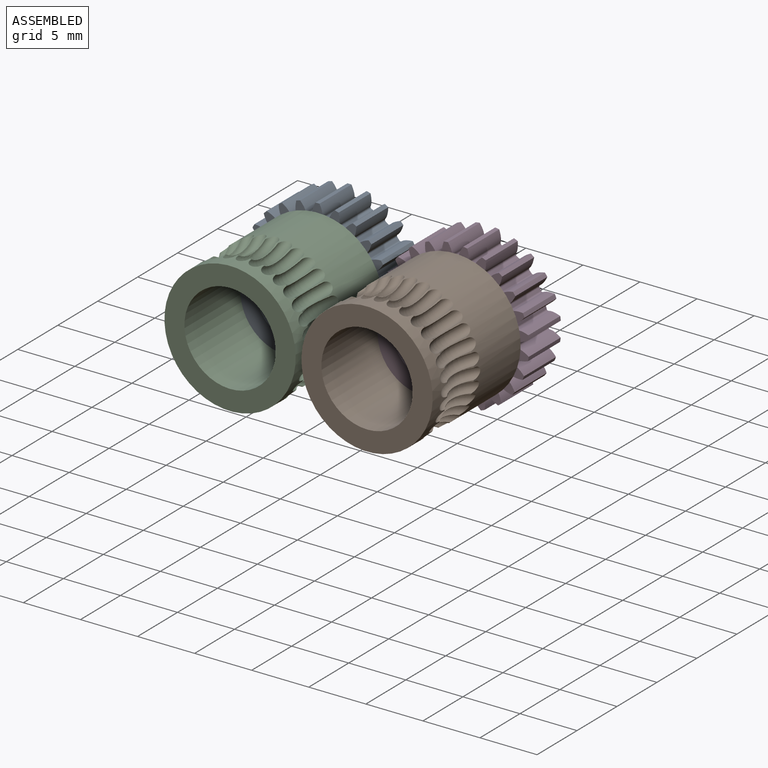
[diagram: assembled view]
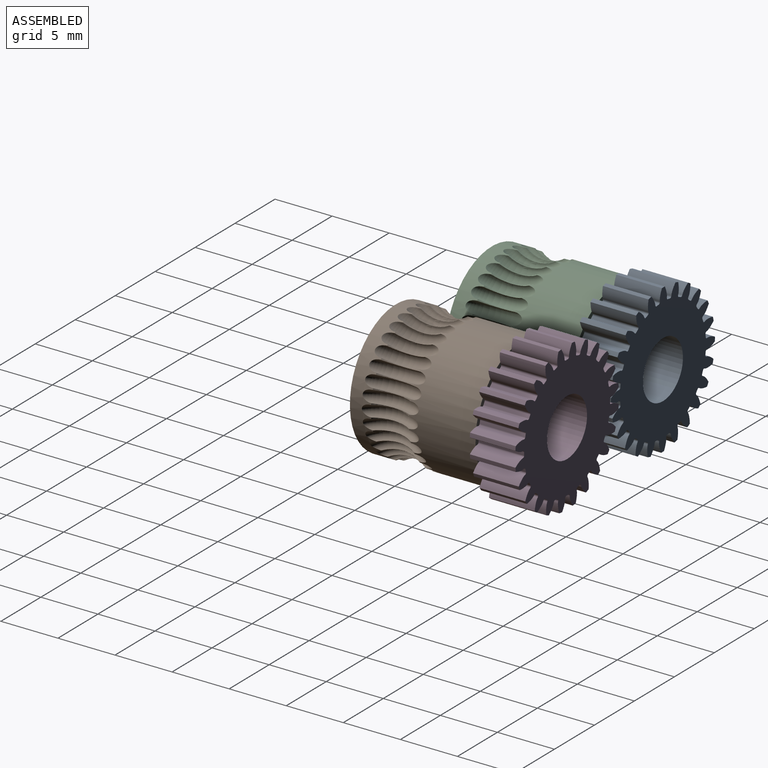
[diagram: assembled view, second angle]
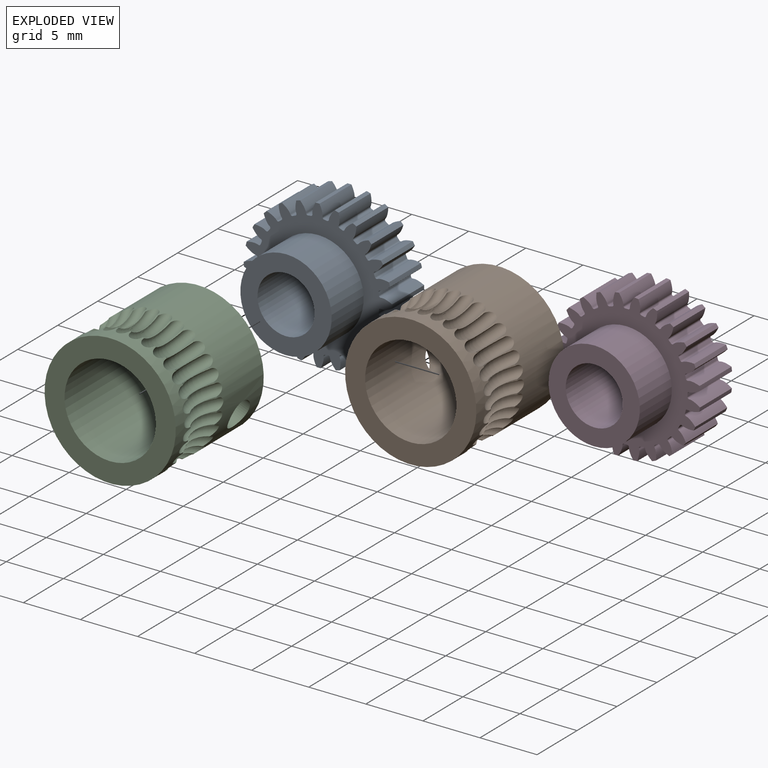
[diagram: exploded view]
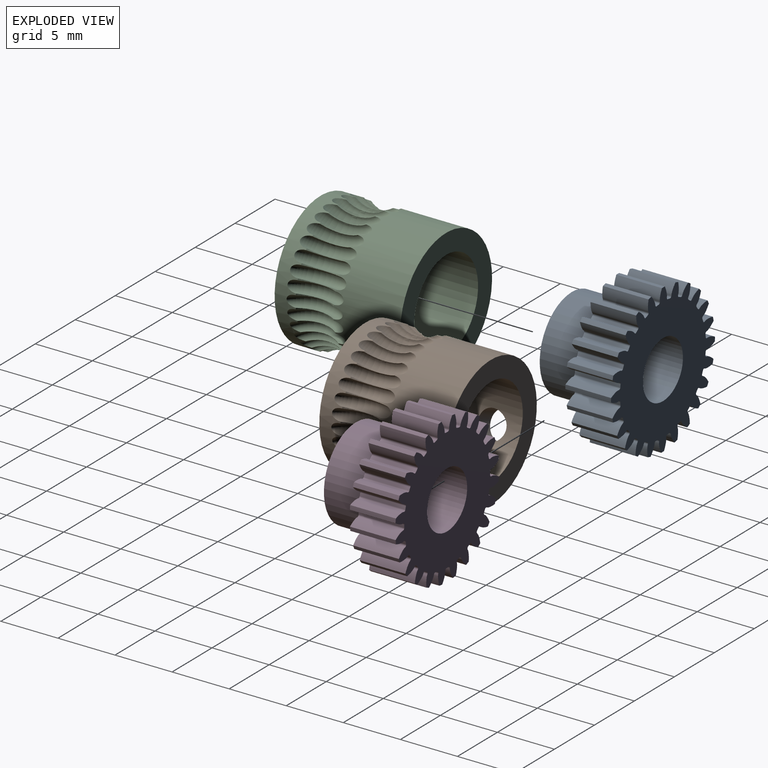
[diagram: exploded view, second angle]
ASSEMBLY  parts=4 mates=2
PART A: 149 faces, bbox 12.9x8x12.9 mm
  f0: cylinder r=6.5mm len=4mm, axis (0,1,0), area 1.4mm2, adj f23,f26,f123,f142
  f1: cylinder r=6.5mm len=4mm, axis (0,1,0), area 1.4mm2, adj f23,f26,f137,f143
  f2: cylinder r=6.5mm len=4mm, axis (0,1,0), area 1.4mm2, adj f23,f26,f128,f132
  f3: cylinder r=6.5mm len=4mm, axis (0,1,0), area 1.4mm2, adj f23,f26,f127,f138
  f4: cylinder r=6.5mm len=4mm, axis (0,1,0), area 1.4mm2, adj f23,f26,f118,f122
  f5: cylinder r=6.5mm len=4mm, axis (0,1,0), area 1.4mm2, adj f23,f26,f108,f117
  f6: cylinder r=6.5mm len=4mm, axis (0,1,0), area 1.4mm2, adj f23,f26,f103,f112
  f7: cylinder r=6.5mm len=4mm, axis (0,1,0), area 1.4mm2, adj f23,f26,f107,f113
  f8: cylinder r=6.5mm len=4mm, axis (0,1,0), area 1.4mm2, adj f23,f26,f98,f102
  f9: cylinder r=6.5mm len=4mm, axis (0,1,0), area 1.4mm2, adj f23,f26,f93,f97
  f10: cylinder r=6.5mm len=4mm, axis (0,1,0), area 1.4mm2, adj f23,f26,f88,f92
  f11: cylinder r=6.5mm len=4mm, axis (0,1,0), area 1.4mm2, adj f23,f26,f73,f87
  f12: cylinder r=6.5mm len=4mm, axis (0,1,0), area 1.4mm2, adj f23,f26,f28,f82
  f13: cylinder r=6.5mm len=4mm, axis (0,1,0), area 1.4mm2, adj f23,f26,f77,f83
  f14: cylinder r=6.5mm len=4mm, axis (0,1,0), area 1.4mm2, adj f23,f26,f68,f72
  f15: cylinder r=6.5mm len=4mm, axis (0,1,0), area 1.4mm2, adj f23,f26,f67,f78
  f16: cylinder r=6.5mm len=4mm, axis (0,1,0), area 1.4mm2, adj f23,f26,f53,f62
  f17: cylinder r=6.5mm len=4mm, axis (0,1,0), area 1.4mm2, adj f23,f26,f48,f57
  f18: cylinder r=6.5mm len=4mm, axis (0,1,0), area 1.4mm2, adj f23,f26,f52,f58
  f19: cylinder r=6.5mm len=4mm, axis (0,1,0), area 1.4mm2, adj f23,f26,f43,f47
  f20: cylinder r=6.5mm len=4mm, axis (0,1,0), area 1.4mm2, adj f23,f26,f38,f42
  f21: cylinder r=6.5mm len=4mm, axis (0,1,0), area 1.4mm2, adj f23,f26,f33,f37
  f22: cylinder r=6.5mm len=4mm, axis (0,1,0), area 1.4mm2, adj f23,f26,f32,f133
  f23: plane 12.93x12.93mm, normal (0,-1,0), area 60.9mm2, adj f0,f1,f2,f3,f4,f5,f6,f7
  f24: cylinder r=2.5mm len=8mm, axis (0,1,0), area 125.7mm2, adj f26,f148
  f25: cylinder r=6.5mm len=4mm, axis (0,1,0), area 1.4mm2, adj f23,f26,f27,f63
  f26: plane 12.93x12.93mm, normal (0,1,0), area 91.5mm2, adj f0,f1,f2,f3,f4,f5,f6,f7
  f27: extruded ~4x0.96mm, area 4.2mm2, adj f23,f25,f26,f31
  f28: extruded ~4x0.96mm, area 4.2mm2, adj f12,f23,f26,f30
  f29: cylinder r=5.38mm len=4mm, axis (0,1,0), area 1.1mm2, adj f23,f26,f30,f31
  f30: cylinder r=0.14mm len=4mm, axis (0,1,0), area 0.9mm2, adj f23,f26,f28,f29
  f31: cylinder r=0.14mm len=4mm, axis (0,1,0), area 0.9mm2, adj f23,f26,f27,f29
  f32: extruded ~4x0.82mm, area 4.2mm2, adj f22,f23,f26,f36
  f33: extruded ~4x1.03mm, area 4.2mm2, adj f21,f23,f26,f35
  f34: cylinder r=5.38mm len=4mm, axis (0,1,0), area 1.1mm2, adj f23,f26,f35,f36
  f35: cylinder r=0.14mm len=4mm, axis (0,1,0), area 0.9mm2, adj f23,f26,f33,f34
  f36: cylinder r=0.14mm len=4mm, axis (0,1,0), area 0.9mm2, adj f23,f26,f32,f34
  f37: extruded ~4x0.96mm, area 4.2mm2, adj f21,f23,f26,f41
  f38: extruded ~4x0.96mm, area 4.2mm2, adj f20,f23,f26,f40
  f39: cylinder r=5.38mm len=4mm, axis (0,1,0), area 1.1mm2, adj f23,f26,f40,f41
  f40: cylinder r=0.14mm len=4mm, axis (0,1,0), area 0.9mm2, adj f23,f26,f38,f39
  f41: cylinder r=0.14mm len=4mm, axis (0,1,0), area 0.9mm2, adj f23,f26,f37,f39
  f42: extruded ~4x1.03mm, area 4.2mm2, adj f20,f23,f26,f46
  f43: extruded ~4x0.82mm, area 4.2mm2, adj f19,f23,f26,f45
  f44: cylinder r=5.38mm len=4mm, axis (0,1,0), area 1.1mm2, adj f23,f26,f45,f46
  f45: cylinder r=0.14mm len=4mm, axis (0,1,0), area 0.9mm2, adj f23,f26,f43,f44
  f46: cylinder r=0.14mm len=4mm, axis (0,1,0), area 0.9mm2, adj f23,f26,f42,f44
  f47: extruded ~4x1.02mm, area 4.2mm2, adj f19,f23,f26,f51
  f48: extruded ~4x0.82mm, area 4.2mm2, adj f17,f23,f26,f50
  f49: cylinder r=5.38mm len=4mm, axis (0,1,0), area 1.1mm2, adj f23,f26,f50,f51
  f50: cylinder r=0.14mm len=4mm, axis (0,1,0), area 0.9mm2, adj f23,f26,f48,f49
  f51: cylinder r=0.14mm len=4mm, axis (0,1,0), area 0.9mm2, adj f23,f26,f47,f49
  f52: extruded ~4x0.82mm, area 4.2mm2, adj f18,f23,f26,f56
  f53: extruded ~4x1.02mm, area 4.2mm2, adj f16,f23,f26,f55
  f54: cylinder r=5.38mm len=4mm, axis (0,1,0), area 1.1mm2, adj f23,f26,f55,f56
  f55: cylinder r=0.14mm len=4mm, axis (0,1,0), area 0.9mm2, adj f23,f26,f53,f54
  f56: cylinder r=0.14mm len=4mm, axis (0,1,0), area 0.9mm2, adj f23,f26,f52,f54
  f57: extruded ~4x0.95mm, area 4.2mm2, adj f17,f23,f26,f61
  f58: extruded ~4x0.95mm, area 4.2mm2, adj f18,f23,f26,f60
  f59: cylinder r=5.38mm len=4mm, axis (0,1,0), area 1.1mm2, adj f23,f26,f60,f61
  f60: cylinder r=0.14mm len=4mm, axis (0,1,0), area 0.9mm2, adj f23,f26,f58,f59
  f61: cylinder r=0.14mm len=4mm, axis (0,1,0), area 0.9mm2, adj f23,f26,f57,f59
  f62: extruded ~4x0.82mm, area 4.2mm2, adj f16,f23,f26,f66
  f63: extruded ~4x1.03mm, area 4.2mm2, adj f23,f25,f26,f65
  f64: cylinder r=5.38mm len=4mm, axis (0,1,0), area 1.1mm2, adj f23,f26,f65,f66
  f65: cylinder r=0.14mm len=4mm, axis (0,1,0), area 0.9mm2, adj f23,f26,f63,f64
  f66: cylinder r=0.14mm len=4mm, axis (0,1,0), area 0.9mm2, adj f23,f26,f62,f64
  f67: extruded ~4x0.95mm, area 4.2mm2, adj f15,f23,f26,f71
  f68: extruded ~4x0.95mm, area 4.2mm2, adj f14,f23,f26,f70
  f69: cylinder r=5.38mm len=4mm, axis (0,1,0), area 1.1mm2, adj f23,f26,f70,f71
  f70: cylinder r=0.14mm len=4mm, axis (0,1,0), area 0.9mm2, adj f23,f26,f68,f69
  f71: cylinder r=0.14mm len=4mm, axis (0,1,0), area 0.9mm2, adj f23,f26,f67,f69
  f72: extruded ~4x0.82mm, area 4.2mm2, adj f14,f23,f26,f76
  f73: extruded ~4x1.02mm, area 4.2mm2, adj f11,f23,f26,f75
  f74: cylinder r=5.38mm len=4mm, axis (0,1,0), area 1.1mm2, adj f23,f26,f75,f76
  f75: cylinder r=0.14mm len=4mm, axis (0,1,0), area 0.9mm2, adj f23,f26,f73,f74
  f76: cylinder r=0.14mm len=4mm, axis (0,1,0), area 0.9mm2, adj f23,f26,f72,f74
  f77: extruded ~4x1.02mm, area 4.2mm2, adj f13,f23,f26,f81
  f78: extruded ~4x0.82mm, area 4.2mm2, adj f15,f23,f26,f80
  f79: cylinder r=5.38mm len=4mm, axis (0,1,0), area 1.1mm2, adj f23,f26,f80,f81
  f80: cylinder r=0.14mm len=4mm, axis (0,1,0), area 0.9mm2, adj f23,f26,f78,f79
  f81: cylinder r=0.14mm len=4mm, axis (0,1,0), area 0.9mm2, adj f23,f26,f77,f79
  f82: extruded ~4x1.03mm, area 4.2mm2, adj f12,f23,f26,f86
  f83: extruded ~4x0.82mm, area 4.2mm2, adj f13,f23,f26,f85
  f84: cylinder r=5.38mm len=4mm, axis (0,1,0), area 1.1mm2, adj f23,f26,f85,f86
  f85: cylinder r=0.14mm len=4mm, axis (0,1,0), area 0.9mm2, adj f23,f26,f83,f84
  f86: cylinder r=0.14mm len=4mm, axis (0,1,0), area 0.9mm2, adj f23,f26,f82,f84
  f87: extruded ~4x0.82mm, area 4.2mm2, adj f11,f23,f26,f91
  f88: extruded ~4x1.03mm, area 4.2mm2, adj f10,f23,f26,f90
  f89: cylinder r=5.38mm len=4mm, axis (0,1,0), area 1.1mm2, adj f23,f26,f90,f91
  f90: cylinder r=0.14mm len=4mm, axis (0,1,0), area 0.9mm2, adj f23,f26,f88,f89
  f91: cylinder r=0.14mm len=4mm, axis (0,1,0), area 0.9mm2, adj f23,f26,f87,f89
  f92: extruded ~4x0.96mm, area 4.2mm2, adj f10,f23,f26,f96
  f93: extruded ~4x0.96mm, area 4.2mm2, adj f9,f23,f26,f95
  f94: cylinder r=5.38mm len=4mm, axis (0,1,0), area 1.1mm2, adj f23,f26,f95,f96
  f95: cylinder r=0.14mm len=4mm, axis (0,1,0), area 0.9mm2, adj f23,f26,f93,f94
  f96: cylinder r=0.14mm len=4mm, axis (0,1,0), area 0.9mm2, adj f23,f26,f92,f94
  f97: extruded ~4x1.03mm, area 4.2mm2, adj f9,f23,f26,f101
  f98: extruded ~4x0.82mm, area 4.2mm2, adj f8,f23,f26,f100
  f99: cylinder r=5.38mm len=4mm, axis (0,1,0), area 1.1mm2, adj f23,f26,f100,f101
  f100: cylinder r=0.14mm len=4mm, axis (0,1,0), area 0.9mm2, adj f23,f26,f98,f99
  f101: cylinder r=0.14mm len=4mm, axis (0,1,0), area 0.9mm2, adj f23,f26,f97,f99
  f102: extruded ~4x1.02mm, area 4.2mm2, adj f8,f23,f26,f106
  f103: extruded ~4x0.82mm, area 4.2mm2, adj f6,f23,f26,f105
  f104: cylinder r=5.38mm len=4mm, axis (0,1,0), area 1.1mm2, adj f23,f26,f105,f106
  f105: cylinder r=0.14mm len=4mm, axis (0,1,0), area 0.9mm2, adj f23,f26,f103,f104
  f106: cylinder r=0.14mm len=4mm, axis (0,1,0), area 0.9mm2, adj f23,f26,f102,f104
  f107: extruded ~4x0.82mm, area 4.2mm2, adj f7,f23,f26,f111
  f108: extruded ~4x1.02mm, area 4.2mm2, adj f5,f23,f26,f110
  f109: cylinder r=5.38mm len=4mm, axis (0,1,0), area 1.1mm2, adj f23,f26,f110,f111
  f110: cylinder r=0.14mm len=4mm, axis (0,1,0), area 0.9mm2, adj f23,f26,f108,f109
  f111: cylinder r=0.14mm len=4mm, axis (0,1,0), area 0.9mm2, adj f23,f26,f107,f109
  f112: extruded ~4x0.95mm, area 4.2mm2, adj f6,f23,f26,f116
  f113: extruded ~4x0.95mm, area 4.2mm2, adj f7,f23,f26,f115
  f114: cylinder r=5.38mm len=4mm, axis (0,1,0), area 1.1mm2, adj f23,f26,f115,f116
  f115: cylinder r=0.14mm len=4mm, axis (0,1,0), area 0.9mm2, adj f23,f26,f113,f114
  f116: cylinder r=0.14mm len=4mm, axis (0,1,0), area 0.9mm2, adj f23,f26,f112,f114
  f117: extruded ~4x0.82mm, area 4.2mm2, adj f5,f23,f26,f121
  f118: extruded ~4x1.03mm, area 4.2mm2, adj f4,f23,f26,f120
  f119: cylinder r=5.38mm len=4mm, axis (0,1,0), area 1.1mm2, adj f23,f26,f120,f121
  f120: cylinder r=0.14mm len=4mm, axis (0,1,0), area 0.9mm2, adj f23,f26,f118,f119
  f121: cylinder r=0.14mm len=4mm, axis (0,1,0), area 0.9mm2, adj f23,f26,f117,f119
  f122: extruded ~4x0.96mm, area 4.2mm2, adj f4,f23,f26,f126
  f123: extruded ~4x0.96mm, area 4.2mm2, adj f0,f23,f26,f125
  f124: cylinder r=5.38mm len=4mm, axis (0,1,0), area 1.1mm2, adj f23,f26,f125,f126
  f125: cylinder r=0.14mm len=4mm, axis (0,1,0), area 0.9mm2, adj f23,f26,f123,f124
  f126: cylinder r=0.14mm len=4mm, axis (0,1,0), area 0.9mm2, adj f23,f26,f122,f124
  f127: extruded ~4x0.95mm, area 4.2mm2, adj f3,f23,f26,f131
  f128: extruded ~4x0.95mm, area 4.2mm2, adj f2,f23,f26,f130
  f129: cylinder r=5.38mm len=4mm, axis (0,1,0), area 1.1mm2, adj f23,f26,f130,f131
  f130: cylinder r=0.14mm len=4mm, axis (0,1,0), area 0.9mm2, adj f23,f26,f128,f129
  f131: cylinder r=0.14mm len=4mm, axis (0,1,0), area 0.9mm2, adj f23,f26,f127,f129
  f132: extruded ~4x0.82mm, area 4.2mm2, adj f2,f23,f26,f136
  f133: extruded ~4x1.02mm, area 4.2mm2, adj f22,f23,f26,f135
  f134: cylinder r=5.38mm len=4mm, axis (0,1,0), area 1.1mm2, adj f23,f26,f135,f136
  f135: cylinder r=0.14mm len=4mm, axis (0,1,0), area 0.9mm2, adj f23,f26,f133,f134
  f136: cylinder r=0.14mm len=4mm, axis (0,1,0), area 0.9mm2, adj f23,f26,f132,f134
  f137: extruded ~4x1.02mm, area 4.2mm2, adj f1,f23,f26,f141
  f138: extruded ~4x0.82mm, area 4.2mm2, adj f3,f23,f26,f140
  f139: cylinder r=5.38mm len=4mm, axis (0,1,0), area 1.1mm2, adj f23,f26,f140,f141
  f140: cylinder r=0.14mm len=4mm, axis (0,1,0), area 0.9mm2, adj f23,f26,f138,f139
  f141: cylinder r=0.14mm len=4mm, axis (0,1,0), area 0.9mm2, adj f23,f26,f137,f139
  f142: extruded ~4x1.03mm, area 4.2mm2, adj f0,f23,f26,f146
  f143: extruded ~4x0.82mm, area 4.2mm2, adj f1,f23,f26,f145
  f144: cylinder r=5.38mm len=4mm, axis (0,1,0), area 1.1mm2, adj f23,f26,f145,f146
  f145: cylinder r=0.14mm len=4mm, axis (0,1,0), area 0.9mm2, adj f23,f26,f143,f144
  f146: cylinder r=0.14mm len=4mm, axis (0,1,0), area 0.9mm2, adj f23,f26,f142,f144
  f147: cylinder r=4mm len=8mm, axis (0,1,0), area 100.5mm2, adj f23,f148
  f148: plane 8x8mm, normal (0,-1,0), area 30.6mm2, adj f24,f147
PART B: 70 faces, bbox 12.2x11x12.2 mm
  f0: cylinder r=5.75mm len=11.5mm, axis (0,1,0), area 186.2mm2, adj f2,f3,f4,f5,f6,f7,f8,f9
  f1: cylinder r=4mm len=11mm, axis (0,1,0), area 271.5mm2, adj f66,f67,f69
  f2: torus R=8.25mm, axis (0,1,0), area 0.4mm2, adj f0,f3,f65,f68
  f3: torus R=3mm, axis (-0.2,0,0.98), area 7.3mm2, adj f0,f2,f4,f65
  f4: torus R=8.25mm, axis (0,1,0), area 0.4mm2, adj f0,f3,f5,f65
  f5: torus R=3mm, axis (-0.38,0,0.92), area 7.3mm2, adj f0,f4,f6,f65
  f6: torus R=8.25mm, axis (0,1,0), area 0.4mm2, adj f0,f5,f7,f65
  f7: torus R=3mm, axis (-0.56,0,0.83), area 7.3mm2, adj f0,f6,f8,f65
  f8: torus R=8.25mm, axis (0,1,0), area 0.4mm2, adj f0,f7,f9,f65
  f9: torus R=3mm, axis (-0.71,0,0.71), area 7.3mm2, adj f0,f8,f10,f65
  f10: torus R=8.25mm, axis (0,1,0), area 0.4mm2, adj f0,f9,f11,f65
  f11: torus R=3mm, axis (-0.83,0,0.56), area 7.3mm2, adj f0,f10,f12,f65
  f12: torus R=8.25mm, axis (0,1,0), area 0.4mm2, adj f0,f11,f13,f65
  f13: torus R=3mm, axis (-0.92,0,0.38), area 7.3mm2, adj f0,f12,f14,f65
  f14: torus R=8.25mm, axis (0,1,0), area 0.4mm2, adj f0,f13,f15,f65
  f15: torus R=3mm, axis (-0.98,0,0.2), area 7.3mm2, adj f0,f14,f16,f65
  f16: torus R=8.25mm, axis (0,1,0), area 0.4mm2, adj f0,f15,f17,f65
  f17: torus R=3mm, axis (-1,0,0), area 7.3mm2, adj f0,f16,f18,f65
  f18: torus R=8.25mm, axis (0,1,0), area 0.4mm2, adj f0,f17,f19,f65
  f19: torus R=3mm, axis (-0.98,0,-0.2), area 7.3mm2, adj f0,f18,f20,f65
  f20: torus R=8.25mm, axis (0,1,0), area 0.4mm2, adj f0,f19,f21,f65
  f21: torus R=3mm, axis (-0.92,0,-0.38), area 7.3mm2, adj f0,f20,f22,f65
  f22: torus R=8.25mm, axis (0,1,0), area 0.4mm2, adj f0,f21,f23,f65
  f23: torus R=3mm, axis (-0.83,0,-0.56), area 7.3mm2, adj f0,f22,f24,f65
  f24: torus R=8.25mm, axis (0,1,0), area 0.4mm2, adj f0,f23,f25,f65
  f25: torus R=3mm, axis (-0.71,0,-0.71), area 7.3mm2, adj f0,f24,f26,f65
  f26: torus R=8.25mm, axis (0,1,0), area 0.4mm2, adj f0,f25,f27,f65
  f27: torus R=3mm, axis (-0.56,0,-0.83), area 7.3mm2, adj f0,f26,f28,f65
  f28: torus R=8.25mm, axis (0,1,0), area 0.4mm2, adj f0,f27,f29,f65
  f29: torus R=3mm, axis (-0.38,0,-0.92), area 7.3mm2, adj f0,f28,f30,f65
  f30: torus R=8.25mm, axis (0,1,0), area 0.4mm2, adj f0,f29,f31,f65
  f31: torus R=3mm, axis (-0.2,0,-0.98), area 7.3mm2, adj f0,f30,f32,f65
  f32: torus R=8.25mm, axis (0,1,0), area 0.4mm2, adj f0,f31,f33,f65
  f33: torus R=3mm, axis (0,0,-1), area 7.3mm2, adj f0,f32,f34,f65
  f34: torus R=8.25mm, axis (0,1,0), area 0.4mm2, adj f0,f33,f35,f65
  f35: torus R=3mm, axis (0.2,0,-0.98), area 7.3mm2, adj f0,f34,f36,f65
  f36: torus R=8.25mm, axis (0,1,0), area 0.4mm2, adj f0,f35,f37,f65
  f37: torus R=3mm, axis (0.38,0,-0.92), area 7.3mm2, adj f0,f36,f38,f65
  f38: torus R=8.25mm, axis (0,1,0), area 0.4mm2, adj f0,f37,f39,f65
  f39: torus R=3mm, axis (0.56,0,-0.83), area 7.3mm2, adj f0,f38,f40,f65
  f40: torus R=8.25mm, axis (0,1,0), area 0.4mm2, adj f0,f39,f41,f65
  f41: torus R=3mm, axis (0.71,0,-0.71), area 7.3mm2, adj f0,f40,f42,f65
  f42: torus R=8.25mm, axis (0,1,0), area 0.4mm2, adj f0,f41,f43,f65
  f43: torus R=3mm, axis (0.83,0,-0.56), area 7.3mm2, adj f0,f42,f44,f65
  f44: torus R=8.25mm, axis (0,1,0), area 0.4mm2, adj f0,f43,f45,f65
  f45: torus R=3mm, axis (0.92,0,-0.38), area 7.3mm2, adj f0,f44,f46,f65
  f46: torus R=8.25mm, axis (0,1,0), area 0.4mm2, adj f0,f45,f47,f65
  f47: torus R=3mm, axis (0.98,0,-0.2), area 7.3mm2, adj f0,f46,f48,f65
  f48: torus R=8.25mm, axis (0,1,0), area 0.4mm2, adj f0,f47,f49,f65
  f49: torus R=3mm, axis (1,0,0), area 7.3mm2, adj f0,f48,f50,f65
  f50: torus R=8.25mm, axis (0,1,0), area 0.4mm2, adj f0,f49,f51,f65
  f51: torus R=3mm, axis (0.98,0,0.2), area 7.3mm2, adj f0,f50,f52,f65
  f52: torus R=8.25mm, axis (0,1,0), area 0.4mm2, adj f0,f51,f53,f65
  f53: torus R=3mm, axis (0.92,0,0.38), area 7.3mm2, adj f0,f52,f54,f65
  f54: torus R=8.25mm, axis (0,1,0), area 0.4mm2, adj f0,f53,f55,f65
  f55: torus R=3mm, axis (0.83,0,0.56), area 7.3mm2, adj f0,f54,f56,f65
  f56: torus R=8.25mm, axis (0,1,0), area 0.4mm2, adj f0,f55,f57,f65
  f57: torus R=3mm, axis (0.71,0,0.71), area 7.3mm2, adj f0,f56,f58,f65
  f58: torus R=8.25mm, axis (0,1,0), area 0.4mm2, adj f0,f57,f59,f65
  f59: torus R=3mm, axis (0.56,0,0.83), area 7.3mm2, adj f0,f58,f60,f65
  f60: torus R=8.25mm, axis (0,1,0), area 0.4mm2, adj f0,f59,f61,f65
  f61: torus R=3mm, axis (0.38,0,0.92), area 7.3mm2, adj f0,f60,f62,f65
  f62: torus R=8.25mm, axis (0,1,0), area 0.4mm2, adj f0,f61,f63,f65
  f63: torus R=3mm, axis (0.2,0,0.98), area 7.3mm2, adj f0,f62,f64,f65
  f64: torus R=8.25mm, axis (0,1,0), area 0.4mm2, adj f0,f63,f65,f68
  f65: cylinder r=5.75mm len=11.5mm, axis (0,1,0), area 46.5mm2, adj f2,f3,f4,f5,f6,f7,f8,f9
  f66: plane 11.5x11.5mm, normal (0,1,0), area 53.6mm2, adj f0,f1
  f67: plane 11.5x11.5mm, normal (0,-1,0), area 53.6mm2, adj f1,f65
  f68: torus R=3mm, axis (0,0,1), area 7.3mm2, adj f0,f2,f64,f65
  f69: cylinder r=1.25mm len=2.5mm, axis (0,0,1), area 14mm2, adj f0,f1
PART C: same geometry as B
PART D: 149 faces, bbox 13x8x13 mm
  f0: cylinder r=6.5mm len=4mm, axis (0,1,0), area 1.4mm2, adj f23,f26,f123,f142
  f1: cylinder r=6.5mm len=4mm, axis (0,1,0), area 1.4mm2, adj f23,f26,f137,f143
  f2: cylinder r=6.5mm len=4mm, axis (0,1,0), area 1.4mm2, adj f23,f26,f128,f132
  f3: cylinder r=6.5mm len=4mm, axis (0,1,0), area 1.4mm2, adj f23,f26,f127,f138
  f4: cylinder r=6.5mm len=4mm, axis (0,1,0), area 1.4mm2, adj f23,f26,f118,f122
  f5: cylinder r=6.5mm len=4mm, axis (0,1,0), area 1.4mm2, adj f23,f26,f108,f117
  f6: cylinder r=6.5mm len=4mm, axis (0,1,0), area 1.4mm2, adj f23,f26,f103,f112
  f7: cylinder r=6.5mm len=4mm, axis (0,1,0), area 1.4mm2, adj f23,f26,f107,f113
  f8: cylinder r=6.5mm len=4mm, axis (0,1,0), area 1.4mm2, adj f23,f26,f98,f102
  f9: cylinder r=6.5mm len=4mm, axis (0,1,0), area 1.4mm2, adj f23,f26,f93,f97
  f10: cylinder r=6.5mm len=4mm, axis (0,1,0), area 1.4mm2, adj f23,f26,f88,f92
  f11: cylinder r=6.5mm len=4mm, axis (0,1,0), area 1.4mm2, adj f23,f26,f73,f87
  f12: cylinder r=6.5mm len=4mm, axis (0,1,0), area 1.4mm2, adj f23,f26,f28,f82
  f13: cylinder r=6.5mm len=4mm, axis (0,1,0), area 1.4mm2, adj f23,f26,f77,f83
  f14: cylinder r=6.5mm len=4mm, axis (0,1,0), area 1.4mm2, adj f23,f26,f68,f72
  f15: cylinder r=6.5mm len=4mm, axis (0,1,0), area 1.4mm2, adj f23,f26,f67,f78
  f16: cylinder r=6.5mm len=4mm, axis (0,1,0), area 1.4mm2, adj f23,f26,f53,f62
  f17: cylinder r=6.5mm len=4mm, axis (0,1,0), area 1.4mm2, adj f23,f26,f48,f57
  f18: cylinder r=6.5mm len=4mm, axis (0,1,0), area 1.4mm2, adj f23,f26,f52,f58
  f19: cylinder r=6.5mm len=4mm, axis (0,1,0), area 1.4mm2, adj f23,f26,f43,f47
  f20: cylinder r=6.5mm len=4mm, axis (0,1,0), area 1.4mm2, adj f23,f26,f38,f42
  f21: cylinder r=6.5mm len=4mm, axis (0,1,0), area 1.4mm2, adj f23,f26,f33,f37
  f22: cylinder r=6.5mm len=4mm, axis (0,1,0), area 1.4mm2, adj f23,f26,f32,f133
  f23: plane 13x13mm, normal (0,-1,0), area 60.9mm2, adj f0,f1,f2,f3,f4,f5,f6,f7
  f24: cylinder r=2.5mm len=8mm, axis (0,1,0), area 125.7mm2, adj f26,f148
  f25: cylinder r=6.5mm len=4mm, axis (0,1,0), area 1.4mm2, adj f23,f26,f27,f63
  f26: plane 13x13mm, normal (0,1,0), area 91.5mm2, adj f0,f1,f2,f3,f4,f5,f6,f7
  f27: extruded ~4x1mm, area 4.2mm2, adj f23,f25,f26,f31
  f28: extruded ~4x0.9mm, area 4.2mm2, adj f12,f23,f26,f30
  f29: cylinder r=5.38mm len=4mm, axis (0,1,0), area 1.1mm2, adj f23,f26,f30,f31
  f30: cylinder r=0.14mm len=4mm, axis (0,1,0), area 0.9mm2, adj f23,f26,f28,f29
  f31: cylinder r=0.14mm len=4mm, axis (0,1,0), area 0.9mm2, adj f23,f26,f27,f29
  f32: extruded ~4x0.9mm, area 4.2mm2, adj f22,f23,f26,f36
  f33: extruded ~4x1mm, area 4.2mm2, adj f21,f23,f26,f35
  f34: cylinder r=5.38mm len=4mm, axis (0,1,0), area 1.1mm2, adj f23,f26,f35,f36
  f35: cylinder r=0.14mm len=4mm, axis (0,1,0), area 0.9mm2, adj f23,f26,f33,f34
  f36: cylinder r=0.14mm len=4mm, axis (0,1,0), area 0.9mm2, adj f23,f26,f32,f34
  f37: extruded ~4x1mm, area 4.2mm2, adj f21,f23,f26,f41
  f38: extruded ~4x0.9mm, area 4.2mm2, adj f20,f23,f26,f40
  f39: cylinder r=5.38mm len=4mm, axis (0,1,0), area 1.1mm2, adj f23,f26,f40,f41
  f40: cylinder r=0.14mm len=4mm, axis (0,1,0), area 0.9mm2, adj f23,f26,f38,f39
  f41: cylinder r=0.14mm len=4mm, axis (0,1,0), area 0.9mm2, adj f23,f26,f37,f39
  f42: extruded ~4x1.03mm, area 4.2mm2, adj f20,f23,f26,f46
  f43: extruded ~4x0.73mm, area 4.2mm2, adj f19,f23,f26,f45
  f44: cylinder r=5.38mm len=4mm, axis (0,1,0), area 1.1mm2, adj f23,f26,f45,f46
  f45: cylinder r=0.14mm len=4mm, axis (0,1,0), area 0.9mm2, adj f23,f26,f43,f44
  f46: cylinder r=0.14mm len=4mm, axis (0,1,0), area 0.9mm2, adj f23,f26,f42,f44
  f47: extruded ~4x1mm, area 4.2mm2, adj f19,f23,f26,f51
  f48: extruded ~4x0.89mm, area 4.2mm2, adj f17,f23,f26,f50
  f49: cylinder r=5.38mm len=4mm, axis (0,1,0), area 1.1mm2, adj f23,f26,f50,f51
  f50: cylinder r=0.14mm len=4mm, axis (0,1,0), area 0.9mm2, adj f23,f26,f48,f49
  f51: cylinder r=0.14mm len=4mm, axis (0,1,0), area 0.9mm2, adj f23,f26,f47,f49
  f52: extruded ~4x0.73mm, area 4.2mm2, adj f18,f23,f26,f56
  f53: extruded ~4x1.03mm, area 4.2mm2, adj f16,f23,f26,f55
  f54: cylinder r=5.38mm len=4mm, axis (0,1,0), area 1.1mm2, adj f23,f26,f55,f56
  f55: cylinder r=0.14mm len=4mm, axis (0,1,0), area 0.9mm2, adj f23,f26,f53,f54
  f56: cylinder r=0.14mm len=4mm, axis (0,1,0), area 0.9mm2, adj f23,f26,f52,f54
  f57: extruded ~4x0.89mm, area 4.2mm2, adj f17,f23,f26,f61
  f58: extruded ~4x1mm, area 4.2mm2, adj f18,f23,f26,f60
  f59: cylinder r=5.38mm len=4mm, axis (0,1,0), area 1.1mm2, adj f23,f26,f60,f61
  f60: cylinder r=0.14mm len=4mm, axis (0,1,0), area 0.9mm2, adj f23,f26,f58,f59
  f61: cylinder r=0.14mm len=4mm, axis (0,1,0), area 0.9mm2, adj f23,f26,f57,f59
  f62: extruded ~4x0.9mm, area 4.2mm2, adj f16,f23,f26,f66
  f63: extruded ~4x1mm, area 4.2mm2, adj f23,f25,f26,f65
  f64: cylinder r=5.38mm len=4mm, axis (0,1,0), area 1.1mm2, adj f23,f26,f65,f66
  f65: cylinder r=0.14mm len=4mm, axis (0,1,0), area 0.9mm2, adj f23,f26,f63,f64
  f66: cylinder r=0.14mm len=4mm, axis (0,1,0), area 0.9mm2, adj f23,f26,f62,f64
  f67: extruded ~4x0.89mm, area 4.2mm2, adj f15,f23,f26,f71
  f68: extruded ~4x1mm, area 4.2mm2, adj f14,f23,f26,f70
  f69: cylinder r=5.38mm len=4mm, axis (0,1,0), area 1.1mm2, adj f23,f26,f70,f71
  f70: cylinder r=0.14mm len=4mm, axis (0,1,0), area 0.9mm2, adj f23,f26,f68,f69
  f71: cylinder r=0.14mm len=4mm, axis (0,1,0), area 0.9mm2, adj f23,f26,f67,f69
  f72: extruded ~4x0.73mm, area 4.2mm2, adj f14,f23,f26,f76
  f73: extruded ~4x1.03mm, area 4.2mm2, adj f11,f23,f26,f75
  f74: cylinder r=5.38mm len=4mm, axis (0,1,0), area 1.1mm2, adj f23,f26,f75,f76
  f75: cylinder r=0.14mm len=4mm, axis (0,1,0), area 0.9mm2, adj f23,f26,f73,f74
  f76: cylinder r=0.14mm len=4mm, axis (0,1,0), area 0.9mm2, adj f23,f26,f72,f74
  f77: extruded ~4x1mm, area 4.2mm2, adj f13,f23,f26,f81
  f78: extruded ~4x0.89mm, area 4.2mm2, adj f15,f23,f26,f80
  f79: cylinder r=5.38mm len=4mm, axis (0,1,0), area 1.1mm2, adj f23,f26,f80,f81
  f80: cylinder r=0.14mm len=4mm, axis (0,1,0), area 0.9mm2, adj f23,f26,f78,f79
  f81: cylinder r=0.14mm len=4mm, axis (0,1,0), area 0.9mm2, adj f23,f26,f77,f79
  f82: extruded ~4x1.03mm, area 4.2mm2, adj f12,f23,f26,f86
  f83: extruded ~4x0.73mm, area 4.2mm2, adj f13,f23,f26,f85
  f84: cylinder r=5.38mm len=4mm, axis (0,1,0), area 1.1mm2, adj f23,f26,f85,f86
  f85: cylinder r=0.14mm len=4mm, axis (0,1,0), area 0.9mm2, adj f23,f26,f83,f84
  f86: cylinder r=0.14mm len=4mm, axis (0,1,0), area 0.9mm2, adj f23,f26,f82,f84
  f87: extruded ~4x0.9mm, area 4.2mm2, adj f11,f23,f26,f91
  f88: extruded ~4x1mm, area 4.2mm2, adj f10,f23,f26,f90
  f89: cylinder r=5.38mm len=4mm, axis (0,1,0), area 1.1mm2, adj f23,f26,f90,f91
  f90: cylinder r=0.14mm len=4mm, axis (0,1,0), area 0.9mm2, adj f23,f26,f88,f89
  f91: cylinder r=0.14mm len=4mm, axis (0,1,0), area 0.9mm2, adj f23,f26,f87,f89
  f92: extruded ~4x1mm, area 4.2mm2, adj f10,f23,f26,f96
  f93: extruded ~4x0.9mm, area 4.2mm2, adj f9,f23,f26,f95
  f94: cylinder r=5.38mm len=4mm, axis (0,1,0), area 1.1mm2, adj f23,f26,f95,f96
  f95: cylinder r=0.14mm len=4mm, axis (0,1,0), area 0.9mm2, adj f23,f26,f93,f94
  f96: cylinder r=0.14mm len=4mm, axis (0,1,0), area 0.9mm2, adj f23,f26,f92,f94
  f97: extruded ~4x1.03mm, area 4.2mm2, adj f9,f23,f26,f101
  f98: extruded ~4x0.73mm, area 4.2mm2, adj f8,f23,f26,f100
  f99: cylinder r=5.38mm len=4mm, axis (0,1,0), area 1.1mm2, adj f23,f26,f100,f101
  f100: cylinder r=0.14mm len=4mm, axis (0,1,0), area 0.9mm2, adj f23,f26,f98,f99
  f101: cylinder r=0.14mm len=4mm, axis (0,1,0), area 0.9mm2, adj f23,f26,f97,f99
  f102: extruded ~4x1mm, area 4.2mm2, adj f8,f23,f26,f106
  f103: extruded ~4x0.89mm, area 4.2mm2, adj f6,f23,f26,f105
  f104: cylinder r=5.38mm len=4mm, axis (0,1,0), area 1.1mm2, adj f23,f26,f105,f106
  f105: cylinder r=0.14mm len=4mm, axis (0,1,0), area 0.9mm2, adj f23,f26,f103,f104
  f106: cylinder r=0.14mm len=4mm, axis (0,1,0), area 0.9mm2, adj f23,f26,f102,f104
  f107: extruded ~4x0.73mm, area 4.2mm2, adj f7,f23,f26,f111
  f108: extruded ~4x1.03mm, area 4.2mm2, adj f5,f23,f26,f110
  f109: cylinder r=5.38mm len=4mm, axis (0,1,0), area 1.1mm2, adj f23,f26,f110,f111
  f110: cylinder r=0.14mm len=4mm, axis (0,1,0), area 0.9mm2, adj f23,f26,f108,f109
  f111: cylinder r=0.14mm len=4mm, axis (0,1,0), area 0.9mm2, adj f23,f26,f107,f109
  f112: extruded ~4x0.89mm, area 4.2mm2, adj f6,f23,f26,f116
  f113: extruded ~4x1mm, area 4.2mm2, adj f7,f23,f26,f115
  f114: cylinder r=5.38mm len=4mm, axis (0,1,0), area 1.1mm2, adj f23,f26,f115,f116
  f115: cylinder r=0.14mm len=4mm, axis (0,1,0), area 0.9mm2, adj f23,f26,f113,f114
  f116: cylinder r=0.14mm len=4mm, axis (0,1,0), area 0.9mm2, adj f23,f26,f112,f114
  f117: extruded ~4x0.9mm, area 4.2mm2, adj f5,f23,f26,f121
  f118: extruded ~4x1mm, area 4.2mm2, adj f4,f23,f26,f120
  f119: cylinder r=5.38mm len=4mm, axis (0,1,0), area 1.1mm2, adj f23,f26,f120,f121
  f120: cylinder r=0.14mm len=4mm, axis (0,1,0), area 0.9mm2, adj f23,f26,f118,f119
  f121: cylinder r=0.14mm len=4mm, axis (0,1,0), area 0.9mm2, adj f23,f26,f117,f119
  f122: extruded ~4x1mm, area 4.2mm2, adj f4,f23,f26,f126
  f123: extruded ~4x0.9mm, area 4.2mm2, adj f0,f23,f26,f125
  f124: cylinder r=5.38mm len=4mm, axis (0,1,0), area 1.1mm2, adj f23,f26,f125,f126
  f125: cylinder r=0.14mm len=4mm, axis (0,1,0), area 0.9mm2, adj f23,f26,f123,f124
  f126: cylinder r=0.14mm len=4mm, axis (0,1,0), area 0.9mm2, adj f23,f26,f122,f124
  f127: extruded ~4x0.89mm, area 4.2mm2, adj f3,f23,f26,f131
  f128: extruded ~4x1mm, area 4.2mm2, adj f2,f23,f26,f130
  f129: cylinder r=5.38mm len=4mm, axis (0,1,0), area 1.1mm2, adj f23,f26,f130,f131
  f130: cylinder r=0.14mm len=4mm, axis (0,1,0), area 0.9mm2, adj f23,f26,f128,f129
  f131: cylinder r=0.14mm len=4mm, axis (0,1,0), area 0.9mm2, adj f23,f26,f127,f129
  f132: extruded ~4x0.73mm, area 4.2mm2, adj f2,f23,f26,f136
  f133: extruded ~4x1.03mm, area 4.2mm2, adj f22,f23,f26,f135
  f134: cylinder r=5.38mm len=4mm, axis (0,1,0), area 1.1mm2, adj f23,f26,f135,f136
  f135: cylinder r=0.14mm len=4mm, axis (0,1,0), area 0.9mm2, adj f23,f26,f133,f134
  f136: cylinder r=0.14mm len=4mm, axis (0,1,0), area 0.9mm2, adj f23,f26,f132,f134
  f137: extruded ~4x1mm, area 4.2mm2, adj f1,f23,f26,f141
  f138: extruded ~4x0.89mm, area 4.2mm2, adj f3,f23,f26,f140
  f139: cylinder r=5.38mm len=4mm, axis (0,1,0), area 1.1mm2, adj f23,f26,f140,f141
  f140: cylinder r=0.14mm len=4mm, axis (0,1,0), area 0.9mm2, adj f23,f26,f138,f139
  f141: cylinder r=0.14mm len=4mm, axis (0,1,0), area 0.9mm2, adj f23,f26,f137,f139
  f142: extruded ~4x1.03mm, area 4.2mm2, adj f0,f23,f26,f146
  f143: extruded ~4x0.73mm, area 4.2mm2, adj f1,f23,f26,f145
  f144: cylinder r=5.38mm len=4mm, axis (0,1,0), area 1.1mm2, adj f23,f26,f145,f146
  f145: cylinder r=0.14mm len=4mm, axis (0,1,0), area 0.9mm2, adj f23,f26,f143,f144
  f146: cylinder r=0.14mm len=4mm, axis (0,1,0), area 0.9mm2, adj f23,f26,f142,f144
  f147: cylinder r=4mm len=8mm, axis (0,1,0), area 100.5mm2, adj f23,f148
  f148: plane 8x8mm, normal (0,-1,0), area 30.6mm2, adj f24,f147
PLACE A rot(axis=(0,1,0),112deg) t=(0,8,0)mm
PLACE B rot(axis=(0,-1,0),112deg) t=(12,4,0)mm
PLACE C rot(axis=(0,1,0),112deg) t=(0,4,0)mm
PLACE D rot(axis=(0,-1,0),112deg) t=(16.5,8,-11.12)mm
MATE fastened A.f24 <-> C.f0  axis (0,-1,0) through (0,0,0)mm
MATE fastened D.f24 <-> B.f0  axis (0,-1,0) through (12,0,0)mm
